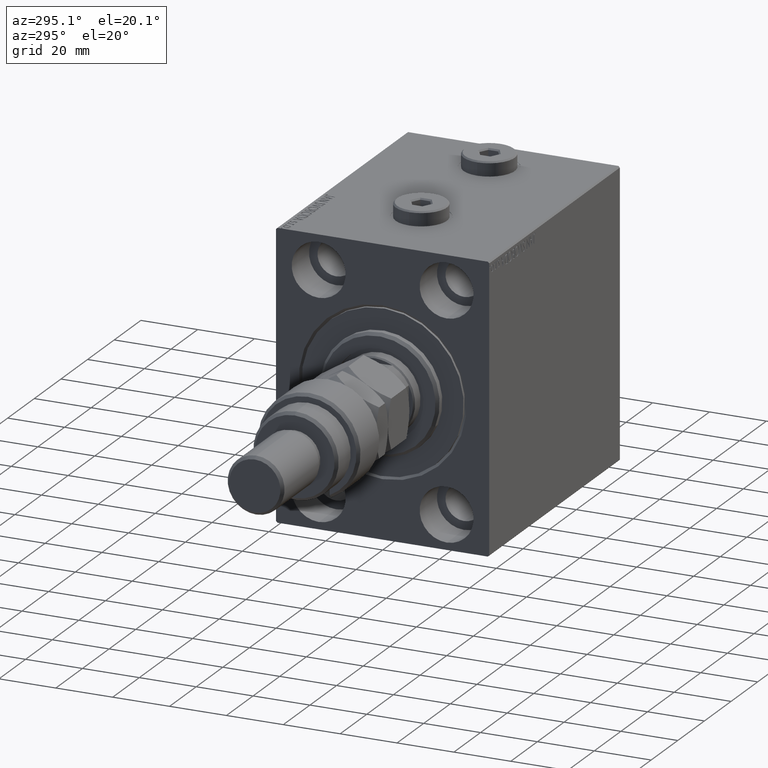
[diagram: clean part render]
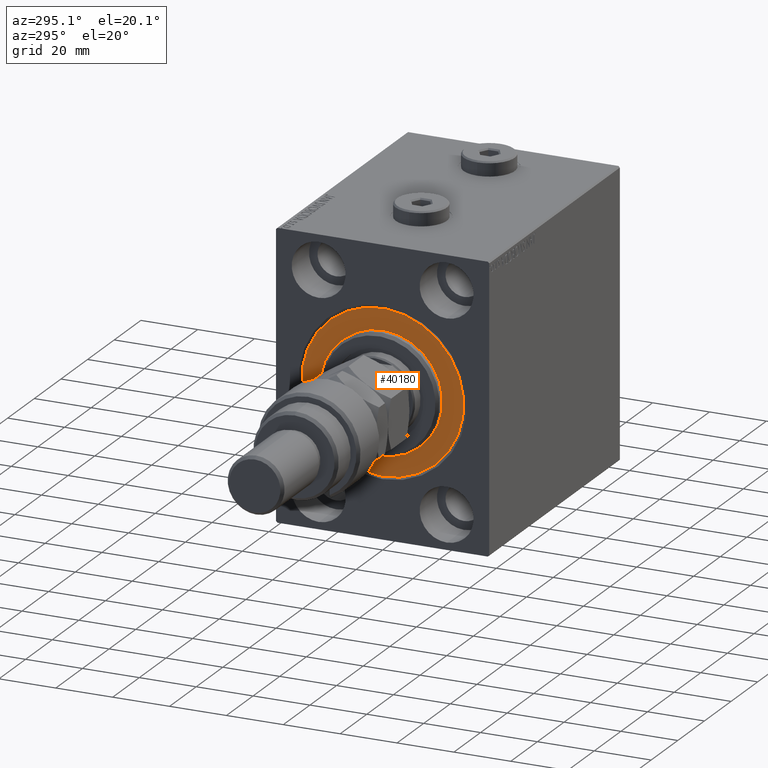
[diagram: same view with one face highlighted and labeled with its STEP entity id]
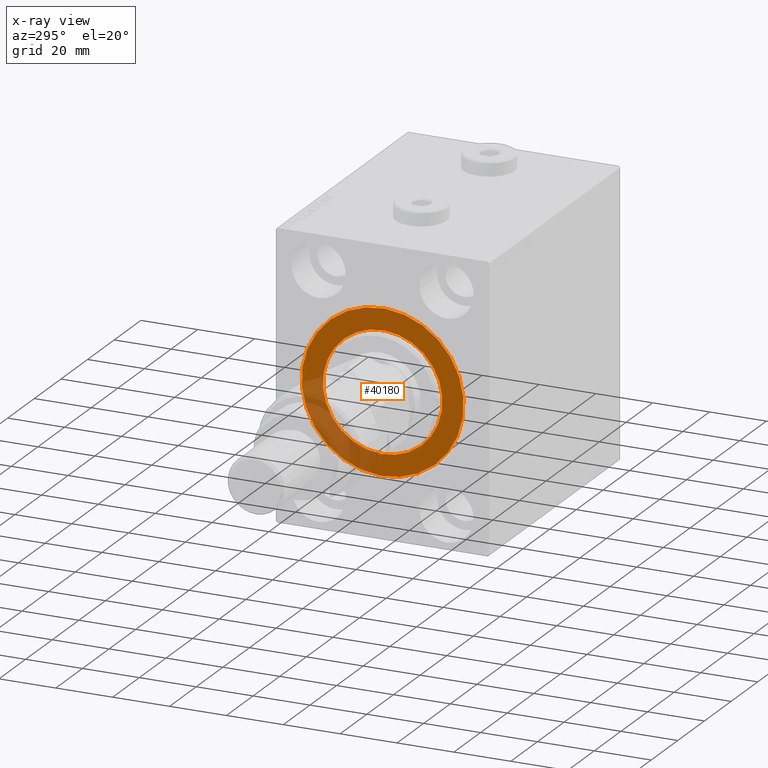
[diagram: x-ray of the same camera — body ghosted, the highlighted face saturated]
A machine part, auxiliary view. The second image highlights one B-rep face of the part: STEP entity #40180.
The next image is the same camera in x-ray: the body ghosted, the highlighted face saturated — about 24% of this face is hidden behind the body in this view.
In plain terms, the highlighted planar face has unit normal (1, 0, -0).
Its self-contained STEP definition (entity closure, byte-faithful):
#202 = DIRECTION ( 'NONE',  ( -1.000000000000000000, 0.000000000000000000, 0.000000000000000000 ) ) ;
#707 = DIRECTION ( 'NONE',  ( -1.000000000000000000, 0.000000000000000000, 0.000000000000000000 ) ) ;
#3136 = FACE_OUTER_BOUND ( 'NONE', #17623, .T. ) ;
#4158 = DIRECTION ( 'NONE',  ( 0.000000000000000000, 0.000000000000000000, -1.000000000000000000 ) ) ;
#5582 = ORIENTED_EDGE ( 'NONE', *, *, #9021, .F. ) ;
#9021 = EDGE_CURVE ( 'NONE', #42258, #22597, #13592, .T. ) ;
#9434 = CARTESIAN_POINT ( 'NONE',  ( 0.000000000000000000, 0.000000000000000000, 21.00000000000000000 ) ) ;
#11250 = AXIS2_PLACEMENT_3D ( 'NONE', #25912, #47619, #14234 ) ;
#11600 = AXIS2_PLACEMENT_3D ( 'NONE', #45059, #14849, #4158 ) ;
#13592 = CIRCLE ( 'NONE', #11250, 21.00000000000000000 ) ;
#14106 = EDGE_CURVE ( 'NONE', #32564, #22264, #20313, .T. ) ;
#14234 = DIRECTION ( 'NONE',  ( 0.000000000000000000, 0.000000000000000000, -1.000000000000000000 ) ) ;
#14849 = DIRECTION ( 'NONE',  ( 1.000000000000000000, -0.000000000000000000, 0.000000000000000000 ) ) ;
#15542 = CARTESIAN_POINT ( 'NONE',  ( 0.000000000000000000, 0.000000000000000000, 0.000000000000000000 ) ) ;
#16291 = ORIENTED_EDGE ( 'NONE', *, *, #40756, .F. ) ;
#17623 = EDGE_LOOP ( 'NONE', ( #36240, #40827 ) ) ;
#17731 = PLANE ( 'NONE',  #27107 ) ;
#19963 = DIRECTION ( 'NONE',  ( -1.000000000000000000, 0.000000000000000000, 0.000000000000000000 ) ) ;
#20313 = CIRCLE ( 'NONE', #40536, 28.50000000000000000 ) ;
#21636 = EDGE_CURVE ( 'NONE', #22264, #32564, #39123, .T. ) ;
#22264 = VERTEX_POINT ( 'NONE', #26861 ) ;
#22597 = VERTEX_POINT ( 'NONE', #9434 ) ;
#23604 = DIRECTION ( 'NONE',  ( 0.000000000000000000, 0.000000000000000000, 1.000000000000000000 ) ) ;
#24073 = CARTESIAN_POINT ( 'NONE',  ( 0.000000000000000000, 0.000000000000000000, 0.000000000000000000 ) ) ;
#25912 = CARTESIAN_POINT ( 'NONE',  ( 0.000000000000000000, 0.000000000000000000, 0.000000000000000000 ) ) ;
#26861 = CARTESIAN_POINT ( 'NONE',  ( 0.000000000000000000, 0.000000000000000000, -28.50000000000000000 ) ) ;
#27107 = AXIS2_PLACEMENT_3D ( 'NONE', #37211, #202, #47451 ) ;
#32564 = VERTEX_POINT ( 'NONE', #44583 ) ;
#33825 = DIRECTION ( 'NONE',  ( 0.000000000000000000, 0.000000000000000000, 1.000000000000000000 ) ) ;
#35819 = CARTESIAN_POINT ( 'NONE',  ( 0.000000000000000000, 2.571758278209441661E-15, -21.00000000000000000 ) ) ;
#36240 = ORIENTED_EDGE ( 'NONE', *, *, #21636, .F. ) ;
#36728 = FACE_BOUND ( 'NONE', #39116, .T. ) ;
#37211 = CARTESIAN_POINT ( 'NONE',  ( 0.000000000000000000, 0.000000000000000000, 0.000000000000000000 ) ) ;
#38805 = CIRCLE ( 'NONE', #11600, 21.00000000000000000 ) ;
#39116 = EDGE_LOOP ( 'NONE', ( #16291, #5582 ) ) ;
#39123 = CIRCLE ( 'NONE', #45327, 28.50000000000000000 ) ;
#40180 = ADVANCED_FACE ( 'NONE', ( #36728, #3136 ), #17731, .F. ) ;
#40536 = AXIS2_PLACEMENT_3D ( 'NONE', #24073, #19963, #23604 ) ;
#40756 = EDGE_CURVE ( 'NONE', #22597, #42258, #38805, .T. ) ;
#40827 = ORIENTED_EDGE ( 'NONE', *, *, #14106, .F. ) ;
#42258 = VERTEX_POINT ( 'NONE', #35819 ) ;
#44583 = CARTESIAN_POINT ( 'NONE',  ( 0.000000000000000000, 3.490243377569956456E-15, 28.50000000000000000 ) ) ;
#45059 = CARTESIAN_POINT ( 'NONE',  ( 0.000000000000000000, 0.000000000000000000, 0.000000000000000000 ) ) ;
#45327 = AXIS2_PLACEMENT_3D ( 'NONE', #15542, #707, #33825 ) ;
#47451 = DIRECTION ( 'NONE',  ( 0.000000000000000000, 0.000000000000000000, 1.000000000000000000 ) ) ;
#47619 = DIRECTION ( 'NONE',  ( 1.000000000000000000, -0.000000000000000000, 0.000000000000000000 ) ) ;